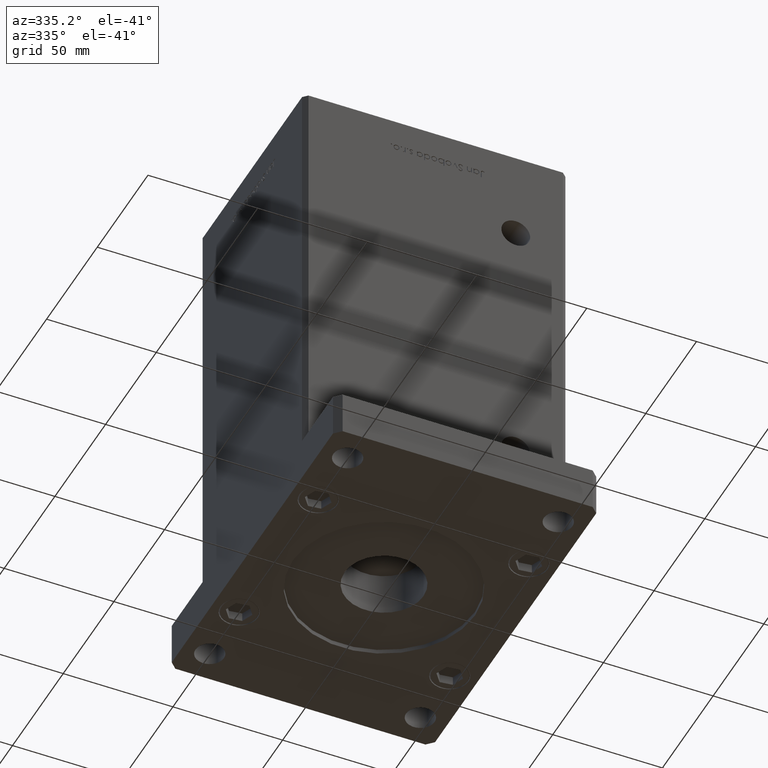
[diagram: clean part render]
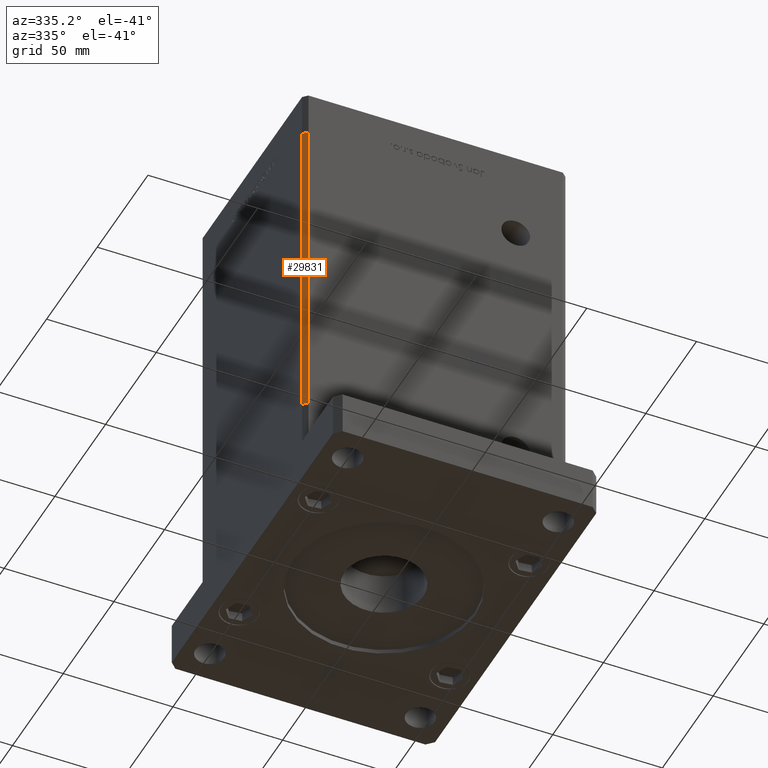
[diagram: same view with one face highlighted and labeled with its STEP entity id]
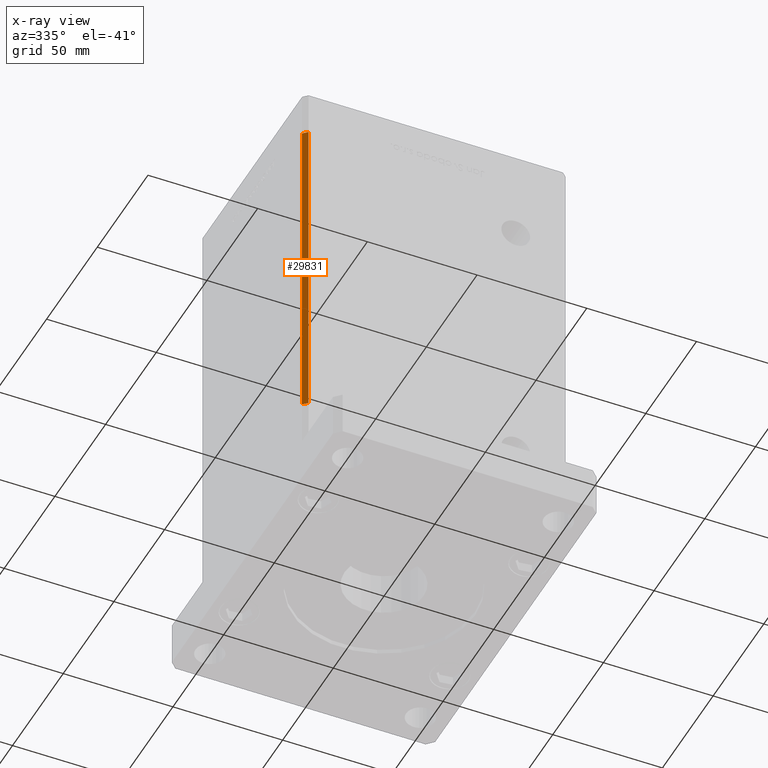
[diagram: x-ray of the same camera — body ghosted, the highlighted face saturated]
A machine part, auxiliary view. The second image highlights one B-rep face of the part: STEP entity #29831.
The next image is the same camera in x-ray: the body ghosted, the highlighted face saturated — about 0% of this face is hidden behind the body in this view.
In plain terms, the highlighted planar face has unit normal (0.7071, 0.7071, 0).
Its self-contained STEP definition (entity closure, byte-faithful):
#442 = VECTOR ( 'NONE', #28424, 1000.000000000000000 ) ;
#1453 = EDGE_CURVE ( 'NONE', #38948, #11494, #34101, .T. ) ;
#3705 = CARTESIAN_POINT ( 'NONE',  ( -59.99999999999998579, -49.00000000000000000, 0.000000000000000000 ) ) ;
#7521 = CARTESIAN_POINT ( 'NONE',  ( -57.99999999999997868, -51.00000000000000711, 148.5000000000000000 ) ) ;
#8704 = ORIENTED_EDGE ( 'NONE', *, *, #33181, .F. ) ;
#9172 = EDGE_CURVE ( 'NONE', #16347, #37321, #32482, .T. ) ;
#9931 = LINE ( 'NONE', #10470, #25763 ) ;
#10470 = CARTESIAN_POINT ( 'NONE',  ( -59.99999999999998579, -49.00000000000000000, 148.5000000000000000 ) ) ;
#11494 = VERTEX_POINT ( 'NONE', #3705 ) ;
#13247 = CARTESIAN_POINT ( 'NONE',  ( -59.99999999999998579, -49.00000000000000000, 148.5000000000000000 ) ) ;
#15491 = DIRECTION ( 'NONE',  ( 0.7071067811865474617, -0.7071067811865474617, 0.000000000000000000 ) ) ;
#15747 = LINE ( 'NONE', #27723, #19044 ) ;
#16347 = VERTEX_POINT ( 'NONE', #25859 ) ;
#16457 = CARTESIAN_POINT ( 'NONE',  ( -59.99999999999998579, -49.00000000000000000, 148.5000000000000000 ) ) ;
#16780 = DIRECTION ( 'NONE',  ( -0.7071067811865474617, 0.7071067811865474617, 0.000000000000000000 ) ) ;
#19044 = VECTOR ( 'NONE', #15491, 1000.000000000000114 ) ;
#22358 = EDGE_LOOP ( 'NONE', ( #28335, #38848, #8704, #39690 ) ) ;
#23915 = AXIS2_PLACEMENT_3D ( 'NONE', #13247, #45566, #16780 ) ;
#25749 = PLANE ( 'NONE',  #23915 ) ;
#25763 = VECTOR ( 'NONE', #35959, 1000.000000000000114 ) ;
#25859 = CARTESIAN_POINT ( 'NONE',  ( -57.99999999999997868, -51.00000000000000711, 148.5000000000000000 ) ) ;
#27723 = CARTESIAN_POINT ( 'NONE',  ( -59.99999999999998579, -49.00000000000000000, 0.000000000000000000 ) ) ;
#28335 = ORIENTED_EDGE ( 'NONE', *, *, #43671, .T. ) ;
#28424 = DIRECTION ( 'NONE',  ( -0.000000000000000000, -0.000000000000000000, -1.000000000000000000 ) ) ;
#29808 = FACE_OUTER_BOUND ( 'NONE', #22358, .T. ) ;
#29831 = ADVANCED_FACE ( 'NONE', ( #29808 ), #25749, .F. ) ;
#30570 = DIRECTION ( 'NONE',  ( -0.000000000000000000, -0.000000000000000000, -1.000000000000000000 ) ) ;
#32482 = LINE ( 'NONE', #7521, #442 ) ;
#33181 = EDGE_CURVE ( 'NONE', #38948, #16347, #9931, .T. ) ;
#33981 = VECTOR ( 'NONE', #30570, 1000.000000000000000 ) ;
#34101 = LINE ( 'NONE', #51175, #33981 ) ;
#35959 = DIRECTION ( 'NONE',  ( 0.7071067811865474617, -0.7071067811865474617, 0.000000000000000000 ) ) ;
#37321 = VERTEX_POINT ( 'NONE', #38500 ) ;
#38500 = CARTESIAN_POINT ( 'NONE',  ( -57.99999999999997868, -51.00000000000000711, 0.000000000000000000 ) ) ;
#38848 = ORIENTED_EDGE ( 'NONE', *, *, #9172, .F. ) ;
#38948 = VERTEX_POINT ( 'NONE', #16457 ) ;
#39690 = ORIENTED_EDGE ( 'NONE', *, *, #1453, .T. ) ;
#43671 = EDGE_CURVE ( 'NONE', #11494, #37321, #15747, .T. ) ;
#45566 = DIRECTION ( 'NONE',  ( 0.7071067811865475727, 0.7071067811865475727, -0.000000000000000000 ) ) ;
#51175 = CARTESIAN_POINT ( 'NONE',  ( -59.99999999999998579, -49.00000000000000000, 148.5000000000000000 ) ) ;